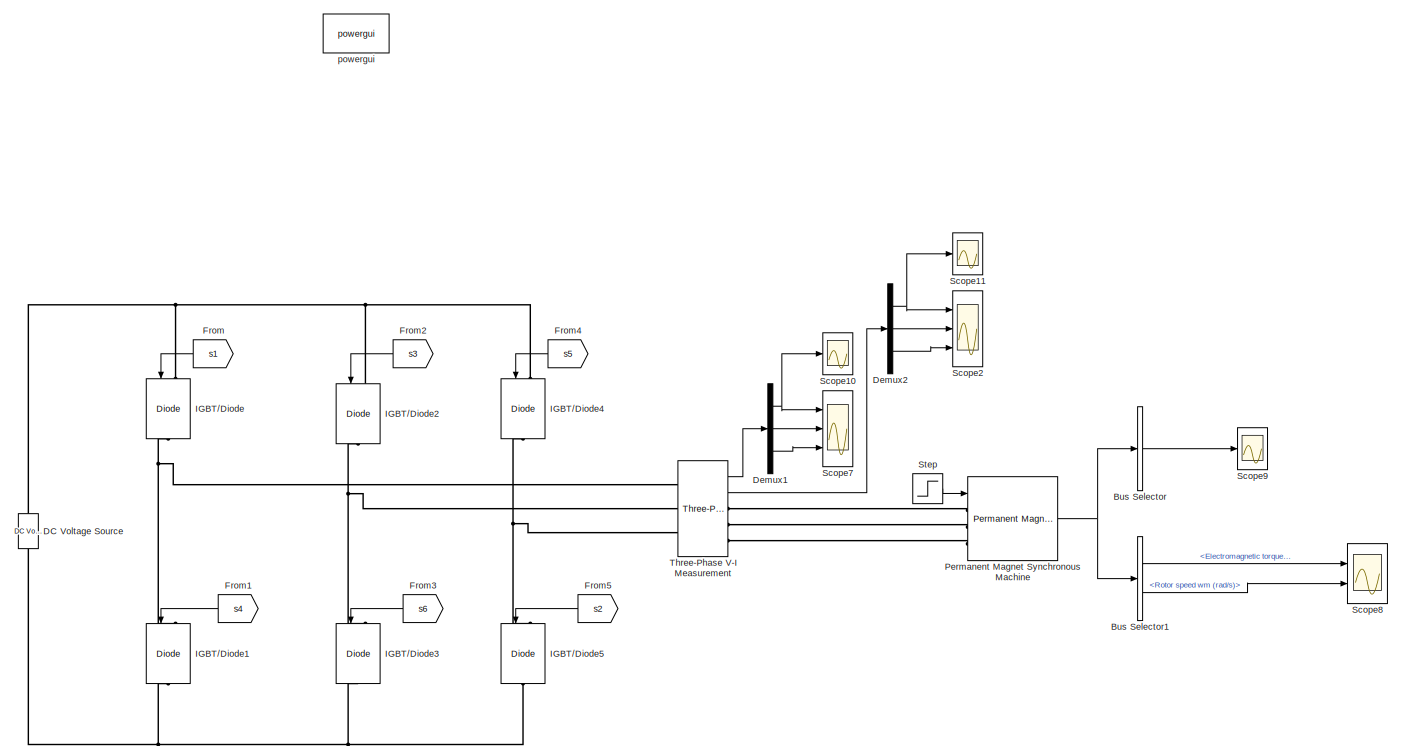
[diagram: root canvas - part 1/3, full width, top band]
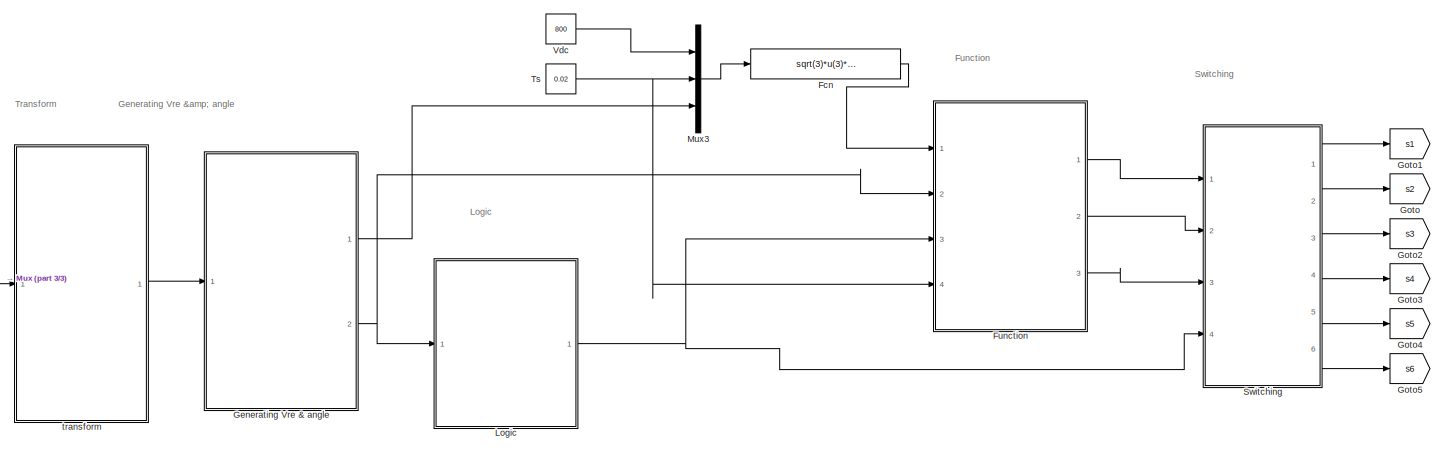
[diagram: root canvas - part 2/3, full width, bottom band]
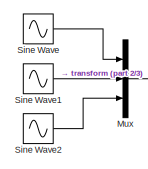
[diagram: root canvas - part 3/3, bottom left region]
MODEL slx_cc77a8152740
KIND model
CONFIG AbsTol = auto
CONFIG FixedStep = auto
CONFIG MaxStep = auto
CONFIG MinStep = auto
CONFIG RelTol = 1e-3
CONFIG SampleTimeConstraint = Unconstrained
CONFIG Solver = VariableStepAuto
CONFIG SolverMode = Auto
CONFIG SolverName = VariableStepAuto
CONFIG StartTime = 0.0
CONFIG StopTime = 0.3
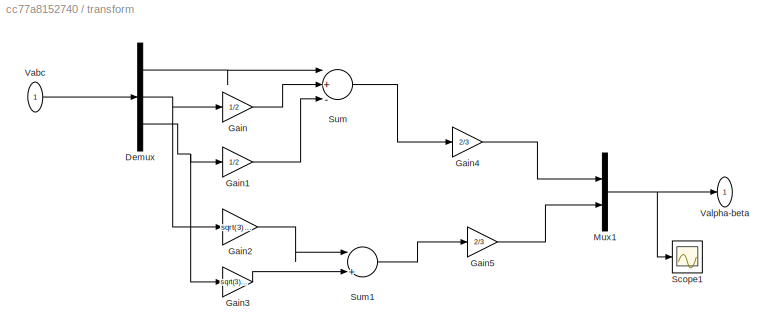
BLOCK [SubSystem]  transform
  Ports = [1, 1]
  RequestExecContextInheritance = off
  Variant = off
BLOCK [Demux]  transform/Demux
  DisplayOption = bar
  Outputs = 3
  Ports = [1, 3]
BLOCK [Gain]  transform/Gain
  Gain = 1/2
  OutDataTypeStr = Inherit: Inherit via internal rule
  ParamDataTypeStr = Inherit: Inherit via internal rule
  SaturateOnIntegerOverflow = off
BLOCK [Gain]  transform/Gain1
  Gain = 1/2
  OutDataTypeStr = Inherit: Inherit via internal rule
  ParamDataTypeStr = Inherit: Inherit via internal rule
  SaturateOnIntegerOverflow = off
BLOCK [Gain]  transform/Gain2
  Gain = sqrt(3)/2
  OutDataTypeStr = Inherit: Inherit via internal rule
  ParamDataTypeStr = Inherit: Inherit via internal rule
  SaturateOnIntegerOverflow = off
BLOCK [Gain]  transform/Gain3
  Gain = sqrt(3)/2
  OutDataTypeStr = Inherit: Inherit via internal rule
  ParamDataTypeStr = Inherit: Inherit via internal rule
  SaturateOnIntegerOverflow = off
BLOCK [Gain]  transform/Gain4
  Gain = 2/3
  OutDataTypeStr = Inherit: Inherit via internal rule
  ParamDataTypeStr = Inherit: Inherit via internal rule
  SaturateOnIntegerOverflow = off
BLOCK [Gain]  transform/Gain5
  Gain = 2/3
  OutDataTypeStr = Inherit: Inherit via internal rule
  ParamDataTypeStr = Inherit: Inherit via internal rule
  SaturateOnIntegerOverflow = off
BLOCK [Mux]  transform/Mux1
  DisplayOption = bar
  Inputs = 2
  Ports = [2, 1]
BLOCK [Scope]  transform/Scope1
  Ports = [1]
  ScopeSpecificationString = Simulink.scopes.TimeScopeBlockCfg('CurrentConfiguration', extmgr.ConfigurationSet(extmgr.Configuration('Core','General UI',true),extmgr.Configuration('Core','Source UI',true),extmgr.Configuration('Sources','WiredSimulink',true,'DataLoggingVariableName','ScopeData1'),extmgr.Configuration('Visuals','Time Domain',true,'SerializedDisplays',{struct('MinYLimReal','-625.00000','MaxYLimReal','625.00000','...<+1486ch>
BLOCK [Sum]  transform/Sum
  InputSameDT = off
  Inputs = |+--
  OutDataTypeStr = Inherit: Inherit via internal rule
  Ports = [3, 1]
  SaturateOnIntegerOverflow = off
BLOCK [Sum]  transform/Sum1
  InputSameDT = off
  Inputs = |+-
  OutDataTypeStr = Inherit: Inherit via internal rule
  Ports = [2, 1]
  SaturateOnIntegerOverflow = off
BLOCK [Inport]  transform/Vabc
  IconDisplay = Port number
BLOCK [Outport]  transform/Valpha-beta
  IconDisplay = Port number
BLOCK [BusSelector] Bus Selector
  OutputAsBus = on
  OutputSignals = Stator current is_a (A),Stator current is_b (A),Stator current is_c (A)
  Ports = [1, 1]
BLOCK [BusSelector] Bus Selector1
  OutputSignals = Electromagnetic torque Te (N*m),Rotor speed wm (rad/s)
  Ports = [1, 2]
BLOCK [Reference] DC Voltage Source  REF=powerlib/Electrical
Sources/DC Voltage Source
  Ports = [0, 0, 0, 0, 0, 1, 1]
  SourceBlock = powerlib/Electrical\nSources/DC Voltage Source
  SourceType = DC Voltage Source
BLOCK [Demux] Demux1
  DisplayOption = bar
  Outputs = 3
  Ports = [1, 3]
BLOCK [Demux] Demux2
  DisplayOption = bar
  Outputs = 3
  Ports = [1, 3]
BLOCK [Fcn] Fcn
  Expr = sqrt(3)*u(3)*u(2)/u(1)
BLOCK [From] From
  GotoTag = s1
BLOCK [From] From1
  GotoTag = s4
BLOCK [From] From2
  GotoTag = s3
BLOCK [From] From3
  GotoTag = s6
BLOCK [From] From4
  GotoTag = s5
BLOCK [From] From5
  GotoTag = s2
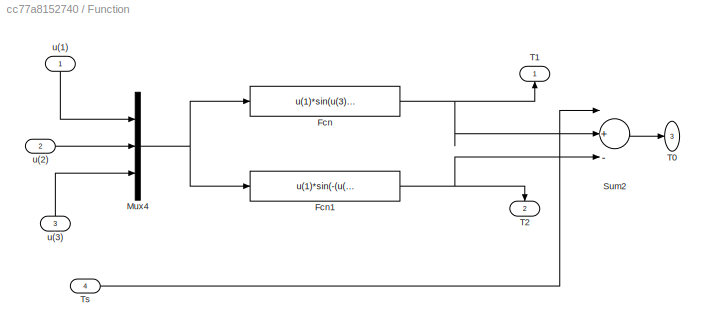
BLOCK [SubSystem] Function
  Ports = [4, 3]
  RequestExecContextInheritance = off
  Variant = off
BLOCK [Fcn] Function/Fcn
  Expr = u(1)*sin(u(3)*pi/3-u(2))
BLOCK [Fcn] Function/Fcn1
  Expr = u(1)*sin(-(u(3)-1)*pi/3+u(2))
BLOCK [Mux] Function/Mux4
  DisplayOption = bar
  Inputs = 3
  Ports = [3, 1]
BLOCK [Sum] Function/Sum2
  InputSameDT = off
  Inputs = |+--
  OutDataTypeStr = Inherit: Inherit via internal rule
  Ports = [3, 1]
  SaturateOnIntegerOverflow = off
BLOCK [Outport] Function/T0
  IconDisplay = Port number
  Port = 3
BLOCK [Outport] Function/T1
  IconDisplay = Port number
BLOCK [Outport] Function/T2
  IconDisplay = Port number
  Port = 2
BLOCK [Inport] Function/Ts
  IconDisplay = Port number
  Port = 4
BLOCK [Inport] Function/u(1)
  IconDisplay = Port number
BLOCK [Inport] Function/u(2)
  IconDisplay = Port number
  Port = 2
BLOCK [Inport] Function/u(3)
  IconDisplay = Port number
  Port = 3
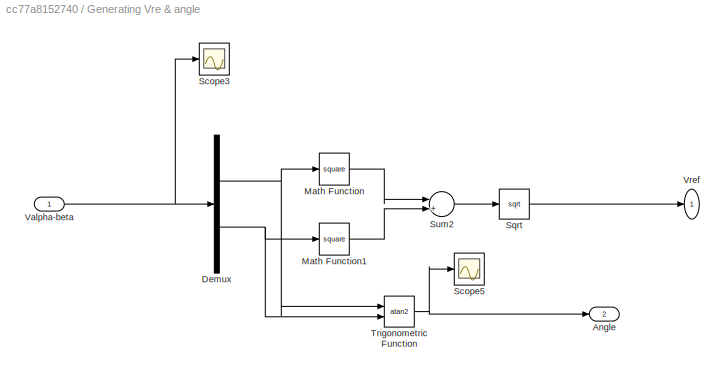
BLOCK [SubSystem] Generating Vre & angle
  Ports = [1, 2]
  RequestExecContextInheritance = off
  Variant = off
BLOCK [Outport] Generating Vre & angle/Angle
  IconDisplay = Port number
  Port = 2
BLOCK [Demux] Generating Vre & angle/Demux
  DisplayOption = bar
  Outputs = 2
  Ports = [1, 2]
BLOCK [Math] Generating Vre & angle/Math Function
  Operator = square
  Ports = [1, 1]
BLOCK [Math] Generating Vre & angle/Math Function1
  Operator = square
  Ports = [1, 1]
BLOCK [Scope] Generating Vre & angle/Scope3
  Ports = [1]
  ScopeSpecificationString = Simulink.scopes.TimeScopeBlockCfg('CurrentConfiguration', extmgr.ConfigurationSet(extmgr.Configuration('Core','General UI',true),extmgr.Configuration('Core','Source UI',true),extmgr.Configuration('Sources','WiredSimulink',true,'DataLoggingVariableName','ScopeData4'),extmgr.Configuration('Visuals','Time Domain',true,'SerializedDisplays',{struct('MinYLimReal','-625.00000','MaxYLimReal','625.00000','...<+1456ch>
BLOCK [Scope] Generating Vre & angle/Scope5
  Ports = [1]
  ScopeSpecificationString = Simulink.scopes.TimeScopeBlockCfg('CurrentConfiguration', extmgr.ConfigurationSet(extmgr.Configuration('Core','General UI',true),extmgr.Configuration('Core','Source UI',true),extmgr.Configuration('Sources','WiredSimulink',true,'DataLoggingVariableName','ScopeData6'),extmgr.Configuration('Visuals','Time Domain',true,'SerializedDisplays',{struct('MinYLimReal','-3.92699','MaxYLimReal','3.92699','YLab...<+1435ch>
BLOCK [Sqrt] Generating Vre & angle/Sqrt
BLOCK [Sum] Generating Vre & angle/Sum2
  InputSameDT = off
  Inputs = |++
  OutDataTypeStr = Inherit: Inherit via internal rule
  Ports = [2, 1]
  SaturateOnIntegerOverflow = off
BLOCK [Trigonometry] Generating Vre & angle/Trigonometric Function
  Operator = atan2
  Ports = [2, 1]
BLOCK [Inport] Generating Vre & angle/Valpha-beta
  IconDisplay = Port number
BLOCK [Outport] Generating Vre & angle/Vref
  IconDisplay = Port number
BLOCK [Goto] Goto
  GotoTag = s2
BLOCK [Goto] Goto1
  GotoTag = s1
BLOCK [Goto] Goto2
  GotoTag = s3
BLOCK [Goto] Goto3
  GotoTag = s4
BLOCK [Goto] Goto4
  GotoTag = s5
BLOCK [Goto] Goto5
  GotoTag = s6
BLOCK [Reference] IGBT//Diode  REF=powerlib/Power
Electronics/IGBT//Diode
  Ports = [1, 0, 0, 0, 0, 1, 1]
  SourceBlock = powerlib/Power\nElectronics/IGBT//Diode
  SourceType = IGBT/Diode
BLOCK [Reference] IGBT//Diode1  REF=powerlib/Power
Electronics/IGBT//Diode
  Ports = [1, 0, 0, 0, 0, 1, 1]
  SourceBlock = powerlib/Power\nElectronics/IGBT//Diode
  SourceType = IGBT/Diode
BLOCK [Reference] IGBT//Diode2  REF=powerlib/Power
Electronics/IGBT//Diode
  Ports = [1, 0, 0, 0, 0, 1, 1]
  SourceBlock = powerlib/Power\nElectronics/IGBT//Diode
  SourceType = IGBT/Diode
BLOCK [Reference] IGBT//Diode3  REF=powerlib/Power
Electronics/IGBT//Diode
  Ports = [1, 0, 0, 0, 0, 1, 1]
  SourceBlock = powerlib/Power\nElectronics/IGBT//Diode
  SourceType = IGBT/Diode
BLOCK [Reference] IGBT//Diode4  REF=powerlib/Power
Electronics/IGBT//Diode
  Ports = [1, 0, 0, 0, 0, 1, 1]
  SourceBlock = powerlib/Power\nElectronics/IGBT//Diode
  SourceType = IGBT/Diode
BLOCK [Reference] IGBT//Diode5  REF=powerlib/Power
Electronics/IGBT//Diode
  Ports = [1, 0, 0, 0, 0, 1, 1]
  SourceBlock = powerlib/Power\nElectronics/IGBT//Diode
  SourceType = IGBT/Diode
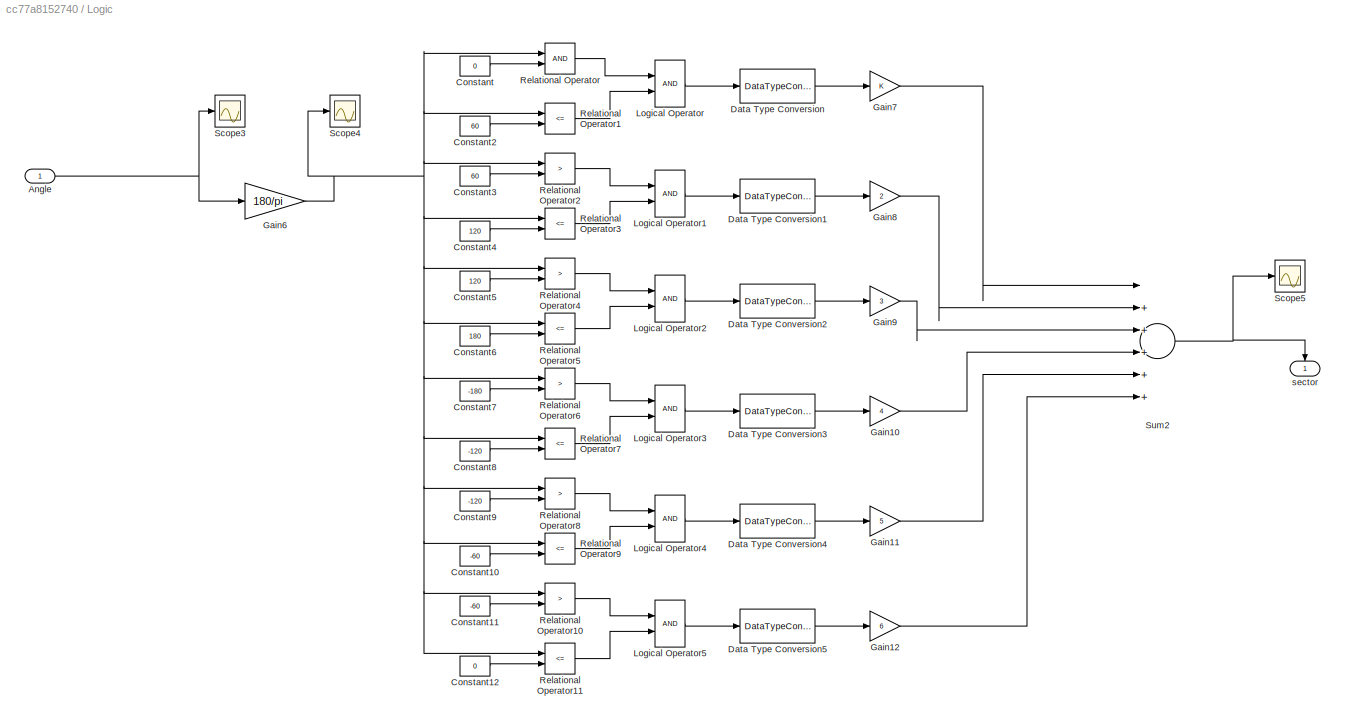
BLOCK [SubSystem] Logic
  Ports = [1, 1]
  RequestExecContextInheritance = off
  Variant = off
BLOCK [Inport] Logic/Angle
  IconDisplay = Port number
BLOCK [Constant] Logic/Constant
  Value = 0
BLOCK [Constant] Logic/Constant10
  Value = -60
BLOCK [Constant] Logic/Constant11
  Value = -60
BLOCK [Constant] Logic/Constant12
  Value = 0
BLOCK [Constant] Logic/Constant2
  Value = 60
BLOCK [Constant] Logic/Constant3
  Value = 60
BLOCK [Constant] Logic/Constant4
  Value = 120
BLOCK [Constant] Logic/Constant5
  Value = 120
BLOCK [Constant] Logic/Constant6
  Value = 180
BLOCK [Constant] Logic/Constant7
  Value = -180
BLOCK [Constant] Logic/Constant8
  Value = -120
BLOCK [Constant] Logic/Constant9
  Value = -120
BLOCK [DataTypeConversion] Logic/Data Type Conversion
  RndMeth = Floor
  SaturateOnIntegerOverflow = off
BLOCK [DataTypeConversion] Logic/Data Type Conversion1
  RndMeth = Floor
  SaturateOnIntegerOverflow = off
BLOCK [DataTypeConversion] Logic/Data Type Conversion2
  RndMeth = Floor
  SaturateOnIntegerOverflow = off
BLOCK [DataTypeConversion] Logic/Data Type Conversion3
  RndMeth = Floor
  SaturateOnIntegerOverflow = off
BLOCK [DataTypeConversion] Logic/Data Type Conversion4
  RndMeth = Floor
  SaturateOnIntegerOverflow = off
BLOCK [DataTypeConversion] Logic/Data Type Conversion5
  RndMeth = Floor
  SaturateOnIntegerOverflow = off
BLOCK [Gain] Logic/Gain10
  Gain = 4
  OutDataTypeStr = Inherit: Inherit via internal rule
  ParamDataTypeStr = Inherit: Inherit via internal rule
  SaturateOnIntegerOverflow = off
BLOCK [Gain] Logic/Gain11
  Gain = 5
  OutDataTypeStr = Inherit: Inherit via internal rule
  ParamDataTypeStr = Inherit: Inherit via internal rule
  SaturateOnIntegerOverflow = off
BLOCK [Gain] Logic/Gain12
  Gain = 6
  OutDataTypeStr = Inherit: Inherit via internal rule
  ParamDataTypeStr = Inherit: Inherit via internal rule
  SaturateOnIntegerOverflow = off
BLOCK [Gain] Logic/Gain6
  Gain = 180/pi
  OutDataTypeStr = Inherit: Inherit via internal rule
  ParamDataTypeStr = Inherit: Inherit via internal rule
  SaturateOnIntegerOverflow = off
BLOCK [Gain] Logic/Gain7
  OutDataTypeStr = Inherit: Inherit via internal rule
  ParamDataTypeStr = Inherit: Inherit via internal rule
  SaturateOnIntegerOverflow = off
BLOCK [Gain] Logic/Gain8
  Gain = 2
  OutDataTypeStr = Inherit: Inherit via internal rule
  ParamDataTypeStr = Inherit: Inherit via internal rule
  SaturateOnIntegerOverflow = off
BLOCK [Gain] Logic/Gain9
  Gain = 3
  OutDataTypeStr = Inherit: Inherit via internal rule
  ParamDataTypeStr = Inherit: Inherit via internal rule
  SaturateOnIntegerOverflow = off
BLOCK [Logic] Logic/Logical Operator
  AllPortsSameDT = off
  OutDataTypeStr = boolean
  Ports = [2, 1]
BLOCK [Logic] Logic/Logical Operator1
  AllPortsSameDT = off
  OutDataTypeStr = boolean
  Ports = [2, 1]
BLOCK [Logic] Logic/Logical Operator2
  AllPortsSameDT = off
  OutDataTypeStr = boolean
  Ports = [2, 1]
BLOCK [Logic] Logic/Logical Operator3
  AllPortsSameDT = off
  OutDataTypeStr = boolean
  Ports = [2, 1]
BLOCK [Logic] Logic/Logical Operator4
  AllPortsSameDT = off
  OutDataTypeStr = boolean
  Ports = [2, 1]
BLOCK [Logic] Logic/Logical Operator5
  AllPortsSameDT = off
  OutDataTypeStr = boolean
  Ports = [2, 1]
BLOCK [RelationalOperator] Logic/Relational Operator
  InputSameDT = off
  OutDataTypeStr = boolean
  Ports = [2, 1]
BLOCK [RelationalOperator] Logic/Relational Operator1
  InputSameDT = off
  Operator = <=
  OutDataTypeStr = boolean
  Ports = [2, 1]
BLOCK [RelationalOperator] Logic/Relational Operator10
  InputSameDT = off
  Operator = >
  OutDataTypeStr = boolean
  Ports = [2, 1]
BLOCK [RelationalOperator] Logic/Relational Operator11
  InputSameDT = off
  Operator = <=
  OutDataTypeStr = boolean
  Ports = [2, 1]
BLOCK [RelationalOperator] Logic/Relational Operator2
  InputSameDT = off
  Operator = >
  OutDataTypeStr = boolean
  Ports = [2, 1]
BLOCK [RelationalOperator] Logic/Relational Operator3
  InputSameDT = off
  Operator = <=
  OutDataTypeStr = boolean
  Ports = [2, 1]
BLOCK [RelationalOperator] Logic/Relational Operator4
  InputSameDT = off
  Operator = >
  OutDataTypeStr = boolean
  Ports = [2, 1]
BLOCK [RelationalOperator] Logic/Relational Operator5
  InputSameDT = off
  Operator = <=
  OutDataTypeStr = boolean
  Ports = [2, 1]
BLOCK [RelationalOperator] Logic/Relational Operator6
  InputSameDT = off
  Operator = >
  OutDataTypeStr = boolean
  Ports = [2, 1]
BLOCK [RelationalOperator] Logic/Relational Operator7
  InputSameDT = off
  Operator = <=
  OutDataTypeStr = boolean
  Ports = [2, 1]
BLOCK [RelationalOperator] Logic/Relational Operator8
  InputSameDT = off
  Operator = >
  OutDataTypeStr = boolean
  Ports = [2, 1]
BLOCK [RelationalOperator] Logic/Relational Operator9
  InputSameDT = off
  Operator = <=
  OutDataTypeStr = boolean
  Ports = [2, 1]
BLOCK [Scope] Logic/Scope3
  Ports = [1]
  ScopeSpecificationString = Simulink.scopes.TimeScopeBlockCfg('CurrentConfiguration', extmgr.ConfigurationSet(extmgr.Configuration('Core','General UI',true),extmgr.Configuration('Core','Source UI',true),extmgr.Configuration('Sources','WiredSimulink',true,'DataLoggingVariableName','ScopeData8'),extmgr.Configuration('Visuals','Time Domain',true,'SerializedDisplays',{struct('MinYLimReal','-3.92699','MaxYLimReal','3.92699','YLab...<+1437ch>
BLOCK [Scope] Logic/Scope4
  Ports = [1]
  ScopeSpecificationString = Simulink.scopes.TimeScopeBlockCfg('CurrentConfiguration', extmgr.ConfigurationSet(extmgr.Configuration('Core','General UI',true),extmgr.Configuration('Core','Source UI',true),extmgr.Configuration('Sources','WiredSimulink',true,'DataLoggingVariableName','ScopeData7'),extmgr.Configuration('Visuals','Time Domain',true,'SerializedDisplays',{struct('MinYLimReal','-225.00000','MaxYLimReal','225.00000','...<+1478ch>
BLOCK [Scope] Logic/Scope5
  Ports = [1]
  ScopeSpecificationString = Simulink.scopes.TimeScopeBlockCfg('CurrentConfiguration', extmgr.ConfigurationSet(extmgr.Configuration('Core','General UI',true),extmgr.Configuration('Core','Source UI',true),extmgr.Configuration('Sources','WiredSimulink',true,'DataLoggingVariableName','ScopeData9'),extmgr.Configuration('Visuals','Time Domain',true,'SerializedDisplays',{struct('MinYLimReal','0.25','MaxYLimReal','7.75','YLabelReal'...<+1437ch>
BLOCK [Sum] Logic/Sum2
  InputSameDT = off
  Inputs = |++++++
  OutDataTypeStr = Inherit: Inherit via internal rule
  Ports = [6, 1]
  SaturateOnIntegerOverflow = off
BLOCK [Outport] Logic/sector
  IconDisplay = Port number
BLOCK [Mux] Mux
  DisplayOption = bar
  Inputs = 3
  Ports = [3, 1]
BLOCK [Mux] Mux3
  DisplayOption = bar
  Inputs = 3
  Ports = [3, 1]
BLOCK [Reference] Permanent Magnet Synchronous Machine  REF=powerlib/Machines/Permanent Magnet
Synchronous Machine
  Ports = [1, 1, 0, 0, 0, 3]
  SourceBlock = powerlib/Machines/Permanent Magnet\nSynchronous Machine
  SourceType = Permanent Magnet Synchronous Machine
BLOCK [Scope] Scope10
  Ports = [1]
  ScopeSpecificationString = Simulink.scopes.TimeScopeBlockCfg('CurrentConfiguration', extmgr.ConfigurationSet(extmgr.Configuration('Core','General UI',true,'FigureColor',[1 1 1]),extmgr.Configuration('Core','Source UI',true),extmgr.Configuration('Sources','WiredSimulink',true,'DataLoggingVariableName','ScopeData2111','DataLogging',true),extmgr.Configuration('Visuals','Time Domain',true,'SerializedDisplays',{struct('MinYLimRe...<+1684ch>
BLOCK [Scope] Scope11
  Ports = [1]
  ScopeSpecificationString = Simulink.scopes.TimeScopeBlockCfg('CurrentConfiguration', extmgr.ConfigurationSet(extmgr.Configuration('Core','General UI',true,'FigureColor',[1 1 1]),extmgr.Configuration('Core','Source UI',true),extmgr.Configuration('Sources','WiredSimulink',true,'DataLoggingVariableName','i','DataLogging',true),extmgr.Configuration('Visuals','Time Domain',true,'SerializedDisplays',{struct('MinYLimReal','-225.32...<+1663ch>
BLOCK [Scope] Scope2
  NumInputPorts = 3
  Ports = [3]
  ScopeSpecificationString = Simulink.scopes.TimeScopeBlockCfg('CurrentConfiguration', extmgr.ConfigurationSet(extmgr.Configuration('Core','General UI',true,'FigureColor',[1 1 1]),extmgr.Configuration('Core','Source UI',true),extmgr.Configuration('Sources','WiredSimulink',true,'DataLoggingVariableName','ScopeData1'),extmgr.Configuration('Visuals','Time Domain',true,'SerializedDisplays',{struct('MinYLimReal','-258.21265','MaxY...<+1592ch>
BLOCK [Scope] Scope7
  NumInputPorts = 3
  Ports = [3]
  ScopeSpecificationString = Simulink.scopes.TimeScopeBlockCfg('CurrentConfiguration', extmgr.ConfigurationSet(extmgr.Configuration('Core','General UI',true),extmgr.Configuration('Core','Source UI',true),extmgr.Configuration('Sources','WiredSimulink',true,'DataLoggingVariableName','ScopeData14'),extmgr.Configuration('Visuals','Time Domain',true,'SerializedDisplays',{struct('MinYLimReal','-1.00000','MaxYLimReal','1.00000','YLa...<+2777ch>
BLOCK [Scope] Scope8
  NumInputPorts = 2
  Ports = [2]
  ScopeSpecificationString = Simulink.scopes.TimeScopeBlockCfg('CurrentConfiguration', extmgr.ConfigurationSet(extmgr.Configuration('Core','General UI',true),extmgr.Configuration('Core','Source UI',true),extmgr.Configuration('Sources','WiredSimulink',true,'DataLoggingVariableName','ScopeData15'),extmgr.Configuration('Visuals','Time Domain',true,'SerializedDisplays',{struct('MinYLimReal','-351.00835','MaxYLimReal','355.73837',...<+2117ch>
BLOCK [Scope] Scope9
  Ports = [1]
  ScopeSpecificationString = Simulink.scopes.TimeScopeBlockCfg('CurrentConfiguration', extmgr.ConfigurationSet(extmgr.Configuration('Core','General UI',true),extmgr.Configuration('Core','Source UI',true),extmgr.Configuration('Sources','WiredSimulink',true,'DataLoggingVariableName','ScopeData16'),extmgr.Configuration('Visuals','Time Domain',true,'SerializedDisplays',{struct('MinYLimReal','-722.81282','MaxYLimReal','722.29325',...<+1570ch>
BLOCK [Sin] Sine Wave
  Amplitude = 800
  Frequency = 2*pi*50
  Ports = [0, 1]
  SampleTime = 0
BLOCK [Sin] Sine Wave1
  Amplitude = 800
  Frequency = 2*pi*50
  Phase = 2*pi/3
  Ports = [0, 1]
  SampleTime = 0
BLOCK [Sin] Sine Wave2
  Amplitude = 800
  Frequency = 2*pi*50
  Phase = -2*pi/3
  Ports = [0, 1]
  SampleTime = 0
BLOCK [Step] Step
  After = 3
  SampleTime = 0
  Time = 0.8
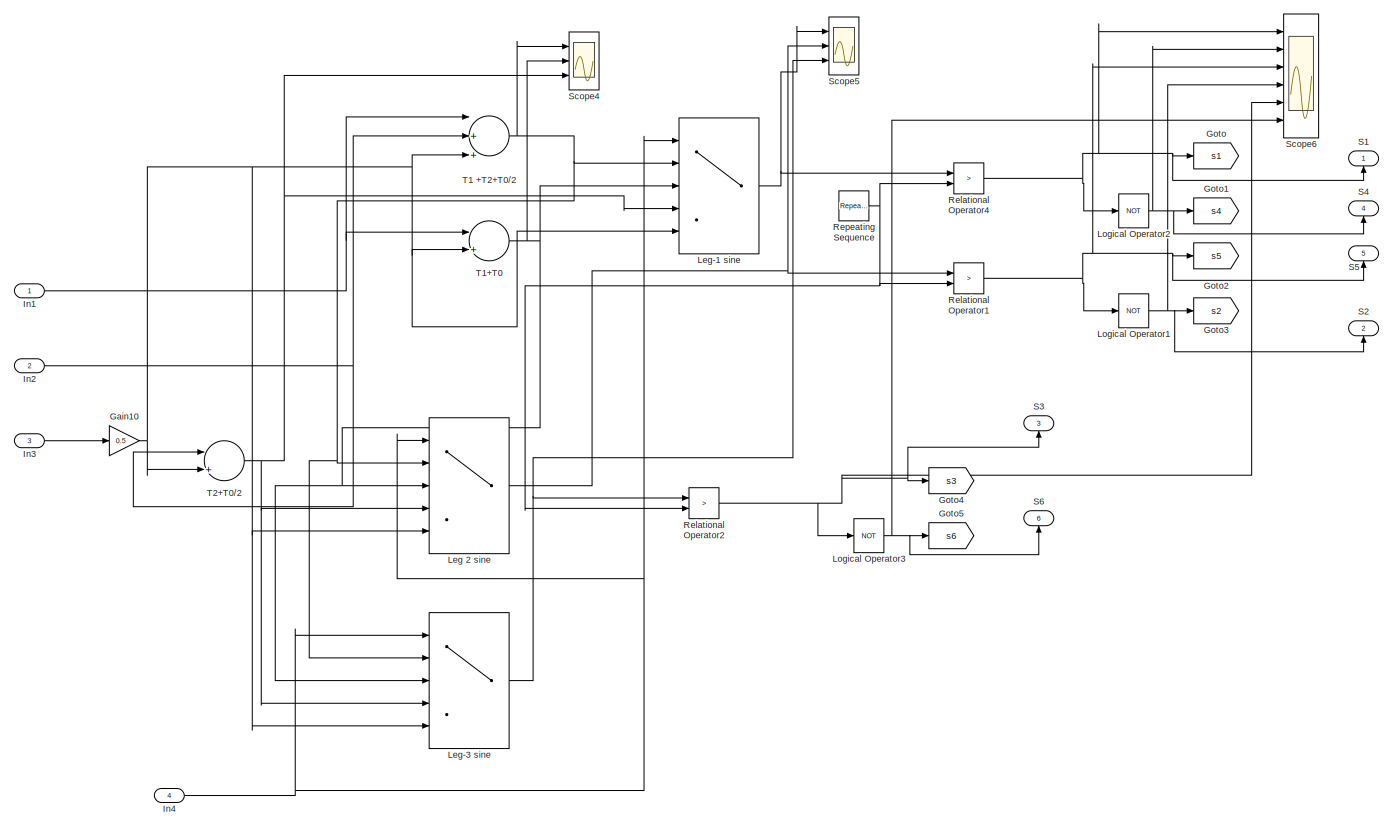
[diagram: Switching  - part 1/1, most of the canvas]
BLOCK [SubSystem] Switching 
  Ports = [4, 6]
  RequestExecContextInheritance = off
  Variant = off
BLOCK [Gain] Switching /Gain10
  Gain = 0.5
  OutDataTypeStr = Inherit: Inherit via internal rule
  ParamDataTypeStr = Inherit: Inherit via internal rule
  SaturateOnIntegerOverflow = off
BLOCK [Goto] Switching /Goto
  GotoTag = s1
BLOCK [Goto] Switching /Goto1
  GotoTag = s4
BLOCK [Goto] Switching /Goto2
  GotoTag = s5
BLOCK [Goto] Switching /Goto3
  GotoTag = s2
BLOCK [Goto] Switching /Goto4
  GotoTag = s3
BLOCK [Goto] Switching /Goto5
  GotoTag = s6
BLOCK [Inport] Switching /In1
  IconDisplay = Port number
BLOCK [Inport] Switching /In2
  IconDisplay = Port number
  Port = 2
BLOCK [Inport] Switching /In3
  IconDisplay = Port number
  Port = 3
BLOCK [Inport] Switching /In4
  IconDisplay = Port number
  Port = 4
BLOCK [MultiPortSwitch] Switching /Leg 2 sine
  DataPortIndices = {[2,3],4,1,[5,6]}
  DataPortOrder = Specify indices
  DiagnosticForDefault = None
  InputSameDT = off
  Ports = [5, 1]
  SaturateOnIntegerOverflow = off
BLOCK [MultiPortSwitch] Switching /Leg-1 sine
  DataPortIndices = {[1,6],2,5,[3,4]}
  DataPortOrder = Specify indices
  DiagnosticForDefault = None
  InputSameDT = off
  Ports = [5, 1]
  SaturateOnIntegerOverflow = off
BLOCK [MultiPortSwitch] Switching /Leg-3 sine
  DataPortIndices = {[4,5],6,3,[1,2]}
  DataPortOrder = Specify indices
  DiagnosticForDefault = None
  InputSameDT = off
  Ports = [5, 1]
  SaturateOnIntegerOverflow = off
BLOCK [Logic] Switching /Logical Operator1
  AllPortsSameDT = off
  Operator = NOT
  OutDataTypeStr = boolean
  Ports = [1, 1]
BLOCK [Logic] Switching /Logical Operator2
  AllPortsSameDT = off
  Operator = NOT
  OutDataTypeStr = boolean
  Ports = [1, 1]
BLOCK [Logic] Switching /Logical Operator3
  AllPortsSameDT = off
  Operator = NOT
  OutDataTypeStr = boolean
  Ports = [1, 1]
BLOCK [RelationalOperator] Switching /Relational Operator1
  InputSameDT = off
  Operator = >
  OutDataTypeStr = boolean
  Ports = [2, 1]
BLOCK [RelationalOperator] Switching /Relational Operator2
  InputSameDT = off
  Operator = >
  OutDataTypeStr = boolean
  Ports = [2, 1]
BLOCK [RelationalOperator] Switching /Relational Operator4
  InputSameDT = off
  Operator = >
  OutDataTypeStr = boolean
  Ports = [2, 1]
BLOCK [Reference] Switching /Repeating Sequence  REF=simulink/Sources/Repeating
Sequence
  Ports = [0, 1]
  SourceBlock = simulink/Sources/Repeating\nSequence
  SourceType = Repeating table
BLOCK [Outport] Switching /S1
  IconDisplay = Port number
BLOCK [Outport] Switching /S2
  IconDisplay = Port number
  Port = 2
BLOCK [Outport] Switching /S3
  IconDisplay = Port number
  Port = 3
BLOCK [Outport] Switching /S4
  IconDisplay = Port number
  Port = 4
BLOCK [Outport] Switching /S5
  IconDisplay = Port number
  Port = 5
BLOCK [Outport] Switching /S6
  IconDisplay = Port number
  Port = 6
BLOCK [Scope] Switching /Scope4
  NumInputPorts = 3
  Ports = [3]
  ScopeSpecificationString = Simulink.scopes.TimeScopeBlockCfg('CurrentConfiguration', extmgr.ConfigurationSet(extmgr.Configuration('Core','General UI',true),extmgr.Configuration('Core','Source UI',true),extmgr.Configuration('Sources','WiredSimulink',true,'DataLoggingVariableName','ScopeData11'),extmgr.Configuration('Visuals','Time Domain',true,'SerializedDisplays',{struct('MinYLimReal','0.0255','MaxYLimReal','0.02843','YLabe...<+2745ch>
BLOCK [Scope] Switching /Scope5
  NumInputPorts = 3
  Ports = [3]
  ScopeSpecificationString = Simulink.scopes.TimeScopeBlockCfg('CurrentConfiguration', extmgr.ConfigurationSet(extmgr.Configuration('Core','General UI',true),extmgr.Configuration('Core','Source UI',true),extmgr.Configuration('Sources','WiredSimulink',true,'DataLoggingVariableName','ScopeData12'),extmgr.Configuration('Visuals','Time Domain',true,'SerializedDisplays',{struct('MinYLimReal','-0.00353','MaxYLimReal','0.02353','YLa...<+2783ch>
BLOCK [Scope] Switching /Scope6
  NumInputPorts = 6
  Ports = [6]
  ScopeSpecificationString = Simulink.scopes.TimeScopeBlockCfg('CurrentConfiguration', extmgr.ConfigurationSet(extmgr.Configuration('Core','General UI',true),extmgr.Configuration('Core','Source UI',true),extmgr.Configuration('Sources','WiredSimulink',true,'DataLoggingVariableName','ScopeData13'),extmgr.Configuration('Visuals','Time Domain',true,'SerializedDisplays',{struct('MinYLimReal','-0.125','MaxYLimReal','1.125','YLabelR...<+6340ch>
BLOCK [Sum] Switching /T1 +T2+T0//2
  InputSameDT = off
  Inputs = |+++
  OutDataTypeStr = Inherit: Inherit via internal rule
  Ports = [3, 1]
  SaturateOnIntegerOverflow = off
BLOCK [Sum] Switching /T1+T0
  InputSameDT = off
  Inputs = |++
  OutDataTypeStr = Inherit: Inherit via internal rule
  Ports = [2, 1]
  SaturateOnIntegerOverflow = off
BLOCK [Sum] Switching /T2+T0//2
  InputSameDT = off
  Inputs = |++
  OutDataTypeStr = Inherit: Inherit via internal rule
  Ports = [2, 1]
  SaturateOnIntegerOverflow = off
BLOCK [Reference] Three-Phase V-I Measurement  REF=powerlib/Measurements/Three-Phase
V-I Measurement
  Ports = [0, 2, 0, 0, 0, 3, 3]
  SourceBlock = powerlib/Measurements/Three-Phase\nV-I Measurement
  SourceType = Three-Phase VI Measurement
BLOCK [Constant] Ts
  Value = 0.02
BLOCK [Constant] Vdc
  Value = 800
BLOCK [Reference] powergui  REF=powerlib/powergui
  Ports = []
  Priority = 1
  SourceBlock = powerlib/powergui
  SourceType = PSB option menu block
  UserDataPersistent = on
ANNOTATION (root): Function
ANNOTATION (root): Generating Vre & angle
ANNOTATION (root): Logic
ANNOTATION (root): Switching
ANNOTATION (root): Transform
LINE  transform/Demux:1 ->  transform/Sum:1
NET  transform/Demux:2 ->  transform/Gain2:1,  transform/Gain:1
NET  transform/Demux:3 ->  transform/Gain1:1,  transform/Gain3:1
LINE  transform/Gain1:1 ->  transform/Sum:3
LINE  transform/Gain2:1 ->  transform/Sum1:1
LINE  transform/Gain3:1 ->  transform/Sum1:2
LINE  transform/Gain4:1 ->  transform/Mux1:1
LINE  transform/Gain5:1 ->  transform/Mux1:2
LINE  transform/Gain:1 ->  transform/Sum:2
NET  transform/Mux1:1 ->  transform/Scope1:1,  transform/Valpha-beta:1
LINE  transform/Sum1:1 ->  transform/Gain5:1
LINE  transform/Sum:1 ->  transform/Gain4:1
LINE  transform/Vabc:1 ->  transform/Demux:1
LINE  transform:1 -> Generating Vre & angle:1
LINE Bus Selector1:1 -> Scope8:1
LINE Bus Selector1:2 -> Scope8:2
LINE Bus Selector:1 -> Scope9:1
NET Demux1:1 -> Scope10:1, Scope7:1
LINE Demux1:2 -> Scope7:2
LINE Demux1:3 -> Scope7:3
NET Demux2:1 -> Scope11:1, Scope2:1
LINE Demux2:2 -> Scope2:2
LINE Demux2:3 -> Scope2:3
LINE Fcn:1 -> Function:1
LINE From1:1 -> IGBT//Diode1:1
LINE From2:1 -> IGBT//Diode2:1
LINE From3:1 -> IGBT//Diode3:1
LINE From4:1 -> IGBT//Diode4:1
LINE From5:1 -> IGBT//Diode5:1
LINE From:1 -> IGBT//Diode:1
NET Function/Fcn1:1 -> Function/Sum2:3, Function/T2:1
NET Function/Fcn:1 -> Function/Sum2:2, Function/T1:1
NET Function/Mux4:1 -> Function/Fcn1:1, Function/Fcn:1
LINE Function/Sum2:1 -> Function/T0:1
LINE Function/Ts:1 -> Function/Sum2:1
LINE Function/u(1):1 -> Function/Mux4:1
LINE Function/u(2):1 -> Function/Mux4:2
LINE Function/u(3):1 -> Function/Mux4:3
LINE Function:1 -> Switching :1
LINE Function:2 -> Switching :2
LINE Function:3 -> Switching :3
NET Generating Vre & angle/Demux:1 -> Generating Vre & angle/Math Function:1, Generating Vre & angle/Trigonometric Function:1
NET Generating Vre & angle/Demux:2 -> Generating Vre & angle/Math Function1:1, Generating Vre & angle/Trigonometric Function:2
LINE Generating Vre & angle/Math Function1:1 -> Generating Vre & angle/Sum2:2
LINE Generating Vre & angle/Math Function:1 -> Generating Vre & angle/Sum2:1
LINE Generating Vre & angle/Sqrt:1 -> Generating Vre & angle/Vref:1
LINE Generating Vre & angle/Sum2:1 -> Generating Vre & angle/Sqrt:1
NET Generating Vre & angle/Trigonometric Function:1 -> Generating Vre & angle/Angle:1, Generating Vre & angle/Scope5:1
NET Generating Vre & angle/Valpha-beta:1 -> Generating Vre & angle/Demux:1, Generating Vre & angle/Scope3:1
LINE Generating Vre & angle:1 -> Mux3:3
NET Generating Vre & angle:2 -> Function:2, Logic:1
NET Logic/Angle:1 -> Logic/Gain6:1, Logic/Scope3:1
LINE Logic/Constant10:1 -> Logic/Relational Operator9:2
LINE Logic/Constant11:1 -> Logic/Relational Operator10:2
LINE Logic/Constant12:1 -> Logic/Relational Operator11:2
LINE Logic/Constant2:1 -> Logic/Relational Operator1:2
LINE Logic/Constant3:1 -> Logic/Relational Operator2:2
LINE Logic/Constant4:1 -> Logic/Relational Operator3:2
LINE Logic/Constant5:1 -> Logic/Relational Operator4:2
LINE Logic/Constant6:1 -> Logic/Relational Operator5:2
LINE Logic/Constant7:1 -> Logic/Relational Operator6:2
LINE Logic/Constant8:1 -> Logic/Relational Operator7:2
LINE Logic/Constant9:1 -> Logic/Relational Operator8:2
LINE Logic/Constant:1 -> Logic/Relational Operator:2
LINE Logic/Data Type Conversion1:1 -> Logic/Gain8:1
LINE Logic/Data Type Conversion2:1 -> Logic/Gain9:1
LINE Logic/Data Type Conversion3:1 -> Logic/Gain10:1
LINE Logic/Data Type Conversion4:1 -> Logic/Gain11:1
LINE Logic/Data Type Conversion5:1 -> Logic/Gain12:1
LINE Logic/Data Type Conversion:1 -> Logic/Gain7:1
LINE Logic/Gain10:1 -> Logic/Sum2:4
LINE Logic/Gain11:1 -> Logic/Sum2:5
LINE Logic/Gain12:1 -> Logic/Sum2:6
NET Logic/Gain6:1 -> Logic/Relational Operator10:1, Logic/Relational Operator11:1, Logic/Relational Operator1:1, Logic/Relational Operator2:1, Logic/Relational Operator3:1, Logic/Relational Operator4:1, Logic/Relational Operator5:1, Logic/Relational Operator6:1, Logic/Relational Operator7:1, Logic/Relational Operator8:1, Logic/Relational Operator9:1, Logic/Relational Operator:1, Logic/Scope4:1
LINE Logic/Gain7:1 -> Logic/Sum2:1
LINE Logic/Gain8:1 -> Logic/Sum2:2
LINE Logic/Gain9:1 -> Logic/Sum2:3
LINE Logic/Logical Operator1:1 -> Logic/Data Type Conversion1:1
LINE Logic/Logical Operator2:1 -> Logic/Data Type Conversion2:1
LINE Logic/Logical Operator3:1 -> Logic/Data Type Conversion3:1
LINE Logic/Logical Operator4:1 -> Logic/Data Type Conversion4:1
LINE Logic/Logical Operator5:1 -> Logic/Data Type Conversion5:1
LINE Logic/Logical Operator:1 -> Logic/Data Type Conversion:1
LINE Logic/Relational Operator10:1 -> Logic/Logical Operator5:1
LINE Logic/Relational Operator11:1 -> Logic/Logical Operator5:2
LINE Logic/Relational Operator1:1 -> Logic/Logical Operator:2
LINE Logic/Relational Operator2:1 -> Logic/Logical Operator1:1
LINE Logic/Relational Operator3:1 -> Logic/Logical Operator1:2
LINE Logic/Relational Operator4:1 -> Logic/Logical Operator2:1
LINE Logic/Relational Operator5:1 -> Logic/Logical Operator2:2
LINE Logic/Relational Operator6:1 -> Logic/Logical Operator3:1
LINE Logic/Relational Operator7:1 -> Logic/Logical Operator3:2
LINE Logic/Relational Operator8:1 -> Logic/Logical Operator4:1
LINE Logic/Relational Operator9:1 -> Logic/Logical Operator4:2
LINE Logic/Relational Operator:1 -> Logic/Logical Operator:1
NET Logic/Sum2:1 -> Logic/Scope5:1, Logic/sector:1
NET Logic:1 -> Function:3, Switching :4
LINE Mux3:1 -> Fcn:1
LINE Mux:1 ->  transform:1
NET Permanent Magnet Synchronous Machine:1 -> Bus Selector1:1, Bus Selector:1
LINE Sine Wave1:1 -> Mux:2
LINE Sine Wave2:1 -> Mux:3
LINE Sine Wave:1 -> Mux:1
LINE Step:1 -> Permanent Magnet Synchronous Machine:1
NET Switching /Gain10:1 -> Switching /Leg 2 sine:5, Switching /Leg-1 sine:5, Switching /Leg-3 sine:5, Switching /T1 +T2+T0//2:3, Switching /T1+T0:2, Switching /T2+T0//2:2
NET Switching /In1:1 -> Switching /T1 +T2+T0//2:1, Switching /T1+T0:1
NET Switching /In2:1 -> Switching /T1 +T2+T0//2:2, Switching /T2+T0//2:1
LINE Switching /In3:1 -> Switching /Gain10:1
NET Switching /In4:1 -> Switching /Leg 2 sine:1, Switching /Leg-1 sine:1, Switching /Leg-3 sine:1
NET Switching /Leg 2 sine:1 -> Switching /Relational Operator1:1, Switching /Scope5:2
NET Switching /Leg-1 sine:1 -> Switching /Relational Operator4:1, Switching /Scope5:1
NET Switching /Leg-3 sine:1 -> Switching /Relational Operator2:1, Switching /Scope5:3
NET Switching /Logical Operator1:1 -> Switching /Goto3:1, Switching /S2:1, Switching /Scope6:4
NET Switching /Logical Operator2:1 -> Switching /Goto1:1, Switching /S4:1, Switching /Scope6:2
NET Switching /Logical Operator3:1 -> Switching /Goto5:1, Switching /S6:1, Switching /Scope6:6
NET Switching /Relational Operator1:1 -> Switching /Goto2:1, Switching /Logical Operator1:1, Switching /S5:1, Switching /Scope6:3
NET Switching /Relational Operator2:1 -> Switching /Goto4:1, Switching /Logical Operator3:1, Switching /S3:1, Switching /Scope6:5
NET Switching /Relational Operator4:1 -> Switching /Goto:1, Switching /Logical Operator2:1, Switching /S1:1, Switching /Scope6:1
NET Switching /Repeating Sequence:1 -> Switching /Relational Operator1:2, Switching /Relational Operator2:2, Switching /Relational Operator4:2
NET Switching /T1 +T2+T0//2:1 -> Switching /Leg 2 sine:2, Switching /Leg-1 sine:2, Switching /Leg-3 sine:2, Switching /Scope4:1
NET Switching /T1+T0:1 -> Switching /Leg 2 sine:3, Switching /Leg-1 sine:3, Switching /Leg-3 sine:3, Switching /Scope4:2
NET Switching /T2+T0//2:1 -> Switching /Leg 2 sine:4, Switching /Leg-1 sine:4, Switching /Leg-3 sine:4, Switching /Scope4:3
LINE Switching :1 -> Goto1:1
LINE Switching :2 -> Goto:1
LINE Switching :3 -> Goto2:1
LINE Switching :4 -> Goto3:1
LINE Switching :5 -> Goto4:1
LINE Switching :6 -> Goto5:1
LINE Three-Phase V-I Measurement:1 -> Demux1:1
LINE Three-Phase V-I Measurement:2 -> Demux2:1
NET Ts:1 -> Function:4, Mux3:2
LINE Vdc:1 -> Mux3:1
PNET net1: DC Voltage Source:LConn1 -- IGBT//Diode1:RConn1 -- IGBT//Diode3:RConn1 -- IGBT//Diode5:RConn1
PNET net2: DC Voltage Source:RConn1 -- IGBT//Diode2:LConn1 -- IGBT//Diode4:LConn1 -- IGBT//Diode:LConn1
PNET net3: IGBT//Diode1:LConn1 -- IGBT//Diode:RConn1 -- Three-Phase V-I Measurement:LConn1
PNET net4: IGBT//Diode2:RConn1 -- IGBT//Diode3:LConn1 -- Three-Phase V-I Measurement:LConn2
PNET net5: IGBT//Diode4:RConn1 -- IGBT//Diode5:LConn1 -- Three-Phase V-I Measurement:LConn3
PLINE Permanent Magnet Synchronous Machine:LConn1 -- Three-Phase V-I Measurement:RConn1
PLINE Permanent Magnet Synchronous Machine:LConn2 -- Three-Phase V-I Measurement:RConn2
PLINE Permanent Magnet Synchronous Machine:LConn3 -- Three-Phase V-I Measurement:RConn3
note: NET lines group one-source signal fan-out (src -> all destinations, sorted); 1:1 wires keep LINE; PNET lines group multi-terminal physical nets as a canonical sorted terminal list (undirected conserving connections); 2-terminal nets keep the pairwise PLINE form
